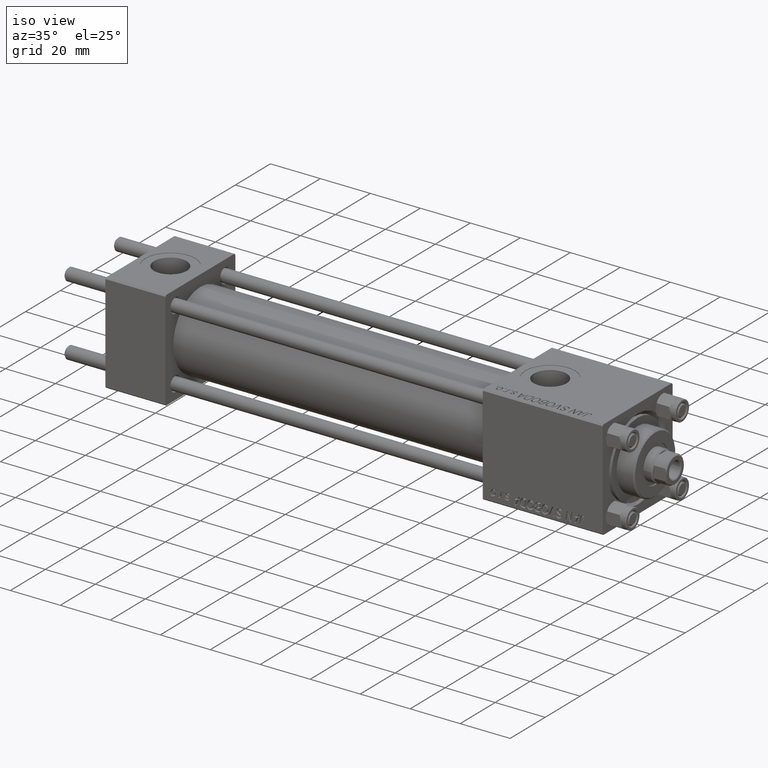
[diagram: clean part render]
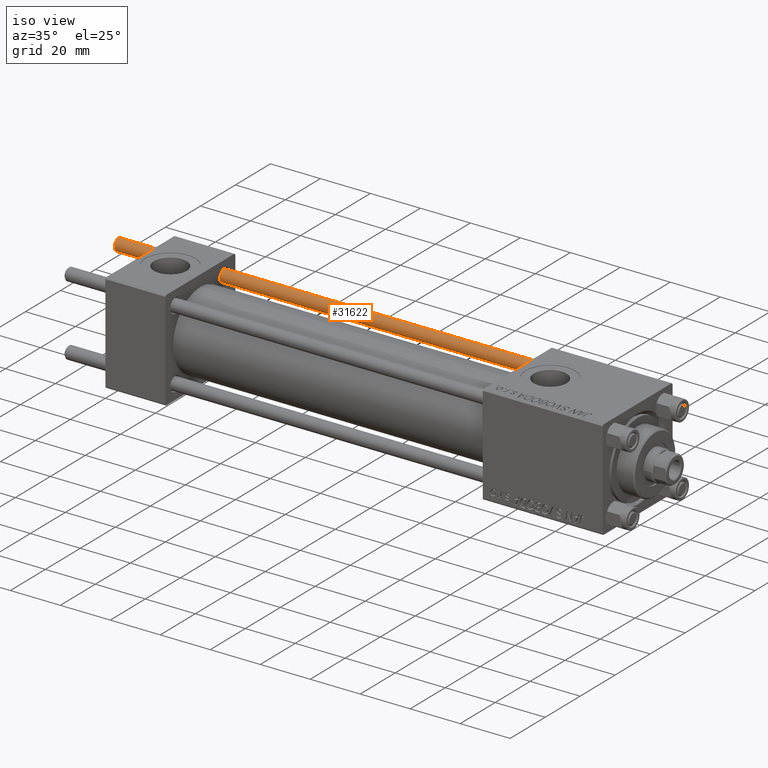
[diagram: same view with one face highlighted and labeled with its STEP entity id]
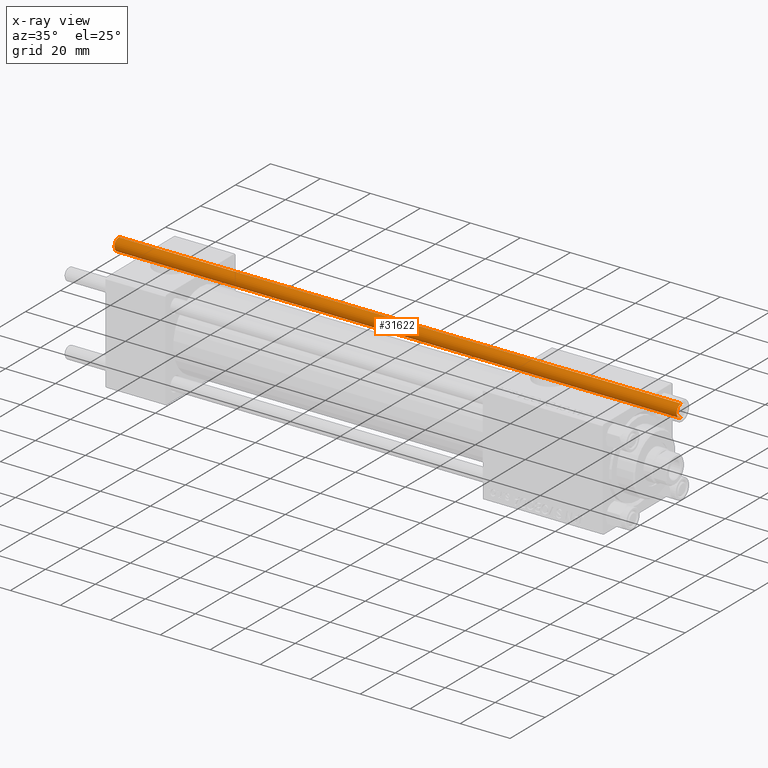
[diagram: x-ray of the same camera — body ghosted, the highlighted face saturated]
A machine part, iso view. The second image highlights one B-rep face of the part: STEP entity #31622.
The next image is the same camera in x-ray: the body ghosted, the highlighted face saturated — about 0% of this face is hidden behind the body in this view.
In plain terms, the highlighted cylindrical surface (edge-blend (fillet) strip) has radius 2.5 mm, axis along (-1, -0, -0).
Its self-contained STEP definition (entity closure, byte-faithful):
#1875 = EDGE_CURVE ( 'NONE', #6440, #12688, #46916, .T. ) ;
#3712 = DIRECTION ( 'NONE',  ( -1.000000000000000000, 0.000000000000000000, 0.000000000000000000 ) ) ;
#4227 = ORIENTED_EDGE ( 'NONE', *, *, #5363, .T. ) ;
#4457 = FACE_OUTER_BOUND ( 'NONE', #12375, .T. ) ;
#5363 = EDGE_CURVE ( 'NONE', #12688, #39533, #30404, .T. ) ;
#6440 = VERTEX_POINT ( 'NONE', #19879 ) ;
#7351 = ORIENTED_EDGE ( 'NONE', *, *, #10670, .T. ) ;
#8467 = CARTESIAN_POINT ( 'NONE',  ( 0.000000000000000000, 0.000000000000000000, 226.0000000000000000 ) ) ;
#8643 = VERTEX_POINT ( 'NONE', #34320 ) ;
#9019 = AXIS2_PLACEMENT_3D ( 'NONE', #8467, #23341, #3712 ) ;
#10440 = CARTESIAN_POINT ( 'NONE',  ( 0.000000000000000000, 0.000000000000000000, 0.4999999999999726885 ) ) ;
#10670 = EDGE_CURVE ( 'NONE', #39533, #8643, #21448, .T. ) ;
#11551 = DIRECTION ( 'NONE',  ( 1.000000000000000000, 0.000000000000000000, 0.000000000000000000 ) ) ;
#11829 = AXIS2_PLACEMENT_3D ( 'NONE', #10440, #13480, #36398 ) ;
#12375 = EDGE_LOOP ( 'NONE', ( #44129, #30927, #4227, #7351 ) ) ;
#12688 = VERTEX_POINT ( 'NONE', #45003 ) ;
#13480 = DIRECTION ( 'NONE',  ( -0.000000000000000000, -0.000000000000000000, 1.000000000000000000 ) ) ;
#19879 = CARTESIAN_POINT ( 'NONE',  ( 2.500000000000000000, 3.061616997868383141E-16, 225.5000000000000284 ) ) ;
#20086 = DIRECTION ( 'NONE',  ( -0.000000000000000000, -0.000000000000000000, -1.000000000000000000 ) ) ;
#21095 = EDGE_CURVE ( 'NONE', #6440, #8643, #23610, .T. ) ;
#21448 = CIRCLE ( 'NONE', #11829, 2.500000000000000000 ) ;
#22597 = DIRECTION ( 'NONE',  ( -0.000000000000000000, -0.000000000000000000, -1.000000000000000000 ) ) ;
#22628 = CARTESIAN_POINT ( 'NONE',  ( -2.500000000000000000, 0.000000000000000000, 0.4999999999999726885 ) ) ;
#23137 = DIRECTION ( 'NONE',  ( 0.000000000000000000, 0.000000000000000000, -1.000000000000000000 ) ) ;
#23341 = DIRECTION ( 'NONE',  ( -0.000000000000000000, -0.000000000000000000, -1.000000000000000000 ) ) ;
#23383 = CARTESIAN_POINT ( 'NONE',  ( 0.000000000000000000, 0.000000000000000000, 225.5000000000000284 ) ) ;
#23610 = LINE ( 'NONE', #49555, #37028 ) ;
#27116 = CYLINDRICAL_SURFACE ( 'NONE', #9019, 2.500000000000000000 ) ;
#28406 = AXIS2_PLACEMENT_3D ( 'NONE', #23383, #23137, #11551 ) ;
#30404 = LINE ( 'NONE', #49284, #42996 ) ;
#30927 = ORIENTED_EDGE ( 'NONE', *, *, #1875, .T. ) ;
#31622 = ADVANCED_FACE ( 'NONE', ( #4457 ), #27116, .T. ) ;
#34320 = CARTESIAN_POINT ( 'NONE',  ( 2.500000000000000000, 3.061616997868383141E-16, 0.4999999999999726885 ) ) ;
#36398 = DIRECTION ( 'NONE',  ( 1.000000000000000000, 0.000000000000000000, 0.000000000000000000 ) ) ;
#37028 = VECTOR ( 'NONE', #20086, 1000.000000000000000 ) ;
#39533 = VERTEX_POINT ( 'NONE', #22628 ) ;
#42996 = VECTOR ( 'NONE', #22597, 1000.000000000000000 ) ;
#44129 = ORIENTED_EDGE ( 'NONE', *, *, #21095, .F. ) ;
#45003 = CARTESIAN_POINT ( 'NONE',  ( -2.500000000000000000, 0.000000000000000000, 225.5000000000000284 ) ) ;
#46916 = CIRCLE ( 'NONE', #28406, 2.500000000000000000 ) ;
#49284 = CARTESIAN_POINT ( 'NONE',  ( -2.500000000000000000, 0.000000000000000000, 226.0000000000000000 ) ) ;
#49555 = CARTESIAN_POINT ( 'NONE',  ( 2.500000000000000000, 3.061616997868383141E-16, 226.0000000000000000 ) ) ;